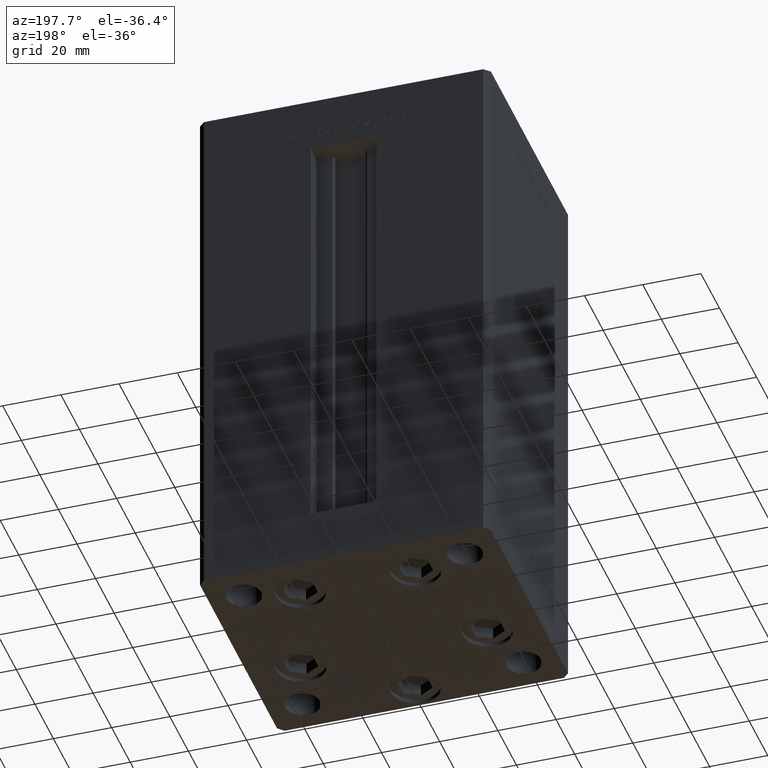
[diagram: clean part render]
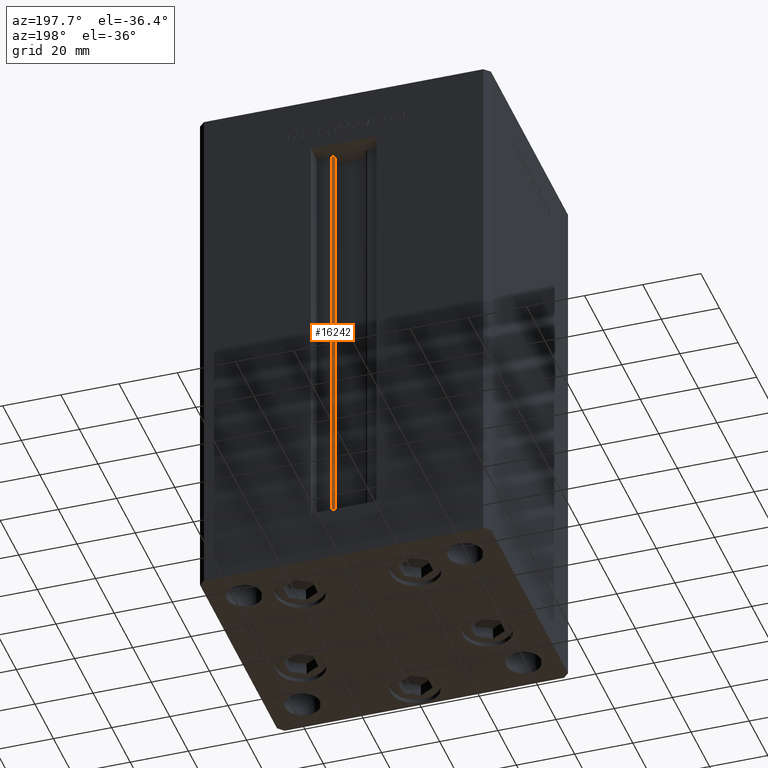
[diagram: same view with one face highlighted and labeled with its STEP entity id]
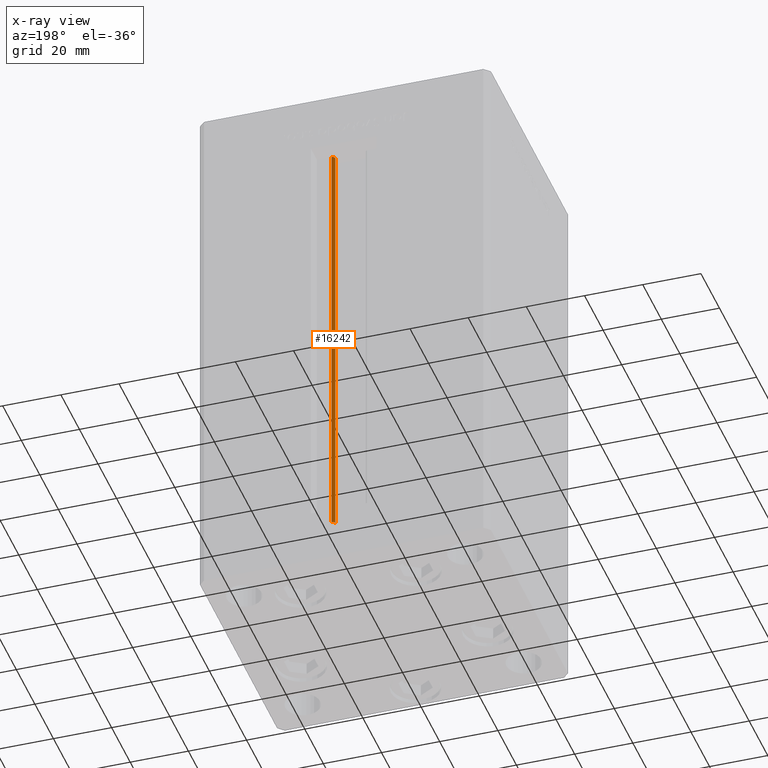
[diagram: x-ray of the same camera — body ghosted, the highlighted face saturated]
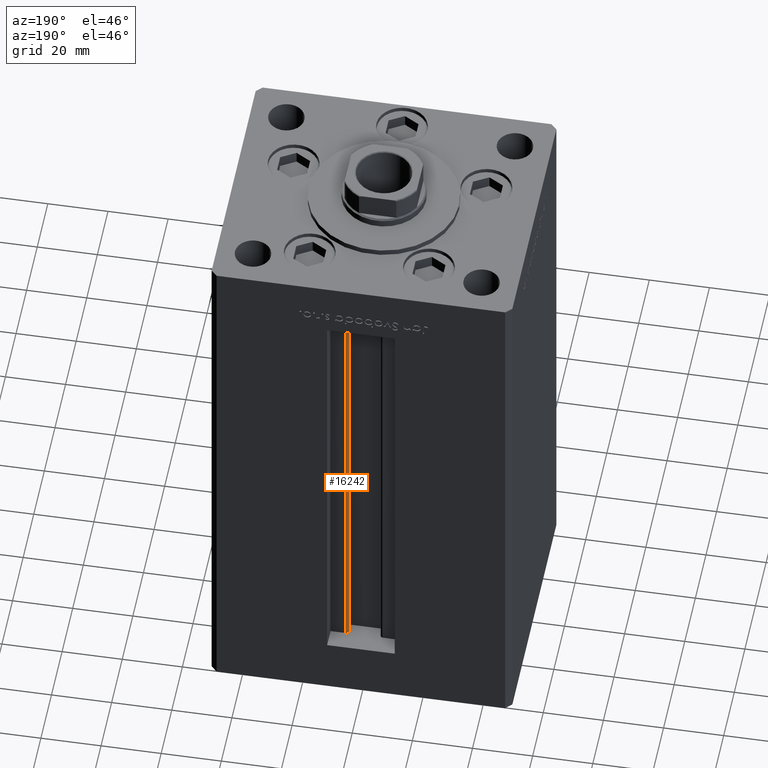
[diagram: same view with one face highlighted and labeled with its STEP entity id]
A machine part, auxiliary view. The second image highlights one B-rep face of the part: STEP entity #16242.
The next image is the same camera in x-ray: the body ghosted, the highlighted face saturated — about 0% of this face is hidden behind the body in this view.
A second angle (auxiliary view) of the same face is appended — the face is thin or edge-on in the first view.
In plain terms, the highlighted cylindrical surface (edge-blend (fillet) strip) has radius 0.9333 mm, axis along (0, 0, 1).
Its self-contained STEP definition (entity closure, byte-faithful):
#1302 = LINE ( 'NONE', #36669, #18632 ) ;
#1773 = DIRECTION ( 'NONE',  ( -0.000000000000000000, -0.000000000000000000, -1.000000000000000000 ) ) ;
#2035 = CARTESIAN_POINT ( 'NONE',  ( 6.183333333333997928, 36.06666666666598786, 0.000000000000000000 ) ) ;
#4296 = ORIENTED_EDGE ( 'NONE', *, *, #48352, .T. ) ;
#4536 = AXIS2_PLACEMENT_3D ( 'NONE', #2035, #1773, #30246 ) ;
#5525 = CYLINDRICAL_SURFACE ( 'NONE', #43312, 0.9333333333340008142 ) ;
#5716 = DIRECTION ( 'NONE',  ( -0.000000000000000000, -0.000000000000000000, 1.000000000000000000 ) ) ;
#6941 = ORIENTED_EDGE ( 'NONE', *, *, #27360, .F. ) ;
#7229 = CARTESIAN_POINT ( 'NONE',  ( 6.183333333333997928, 36.06666666666598786, 148.5000000000000000 ) ) ;
#7612 = VERTEX_POINT ( 'NONE', #18319 ) ;
#9470 = FACE_OUTER_BOUND ( 'NONE', #48100, .T. ) ;
#9665 = CARTESIAN_POINT ( 'NONE',  ( 6.183333333333997928, 36.99999999999999289, 0.000000000000000000 ) ) ;
#11506 = CIRCLE ( 'NONE', #16545, 0.9333333333340008142 ) ;
#13414 = DIRECTION ( 'NONE',  ( -0.000000000000000000, -0.000000000000000000, 1.000000000000000000 ) ) ;
#13614 = LINE ( 'NONE', #9665, #22865 ) ;
#16242 = ADVANCED_FACE ( 'NONE', ( #9470 ), #5525, .T. ) ;
#16545 = AXIS2_PLACEMENT_3D ( 'NONE', #7229, #47321, #51811 ) ;
#18052 = ORIENTED_EDGE ( 'NONE', *, *, #35110, .F. ) ;
#18319 = CARTESIAN_POINT ( 'NONE',  ( 5.375042956467942723, 35.59999999999898534, 148.5000000000000000 ) ) ;
#18632 = VECTOR ( 'NONE', #25037, 1000.000000000000000 ) ;
#21607 = CARTESIAN_POINT ( 'NONE',  ( 6.183333333333997928, 36.06666666666598786, 0.000000000000000000 ) ) ;
#22865 = VECTOR ( 'NONE', #5716, 1000.000000000000000 ) ;
#25037 = DIRECTION ( 'NONE',  ( -0.000000000000000000, -0.000000000000000000, 1.000000000000000000 ) ) ;
#25418 = ORIENTED_EDGE ( 'NONE', *, *, #27106, .T. ) ;
#27106 = EDGE_CURVE ( 'NONE', #39614, #7612, #1302, .T. ) ;
#27360 = EDGE_CURVE ( 'NONE', #30589, #28046, #13614, .T. ) ;
#28046 = VERTEX_POINT ( 'NONE', #38488 ) ;
#30246 = DIRECTION ( 'NONE',  ( 1.000000000000000000, 0.000000000000000000, 0.000000000000000000 ) ) ;
#30589 = VERTEX_POINT ( 'NONE', #40081 ) ;
#35110 = EDGE_CURVE ( 'NONE', #39614, #30589, #39055, .T. ) ;
#36669 = CARTESIAN_POINT ( 'NONE',  ( 5.375042956467945388, 35.59999999999898534, 0.000000000000000000 ) ) ;
#38488 = CARTESIAN_POINT ( 'NONE',  ( 6.183333333333997928, 36.99999999999999289, 148.5000000000000000 ) ) ;
#39055 = CIRCLE ( 'NONE', #4536, 0.9333333333340008142 ) ;
#39614 = VERTEX_POINT ( 'NONE', #40004 ) ;
#40004 = CARTESIAN_POINT ( 'NONE',  ( 5.375042956467945388, 35.59999999999898534, 0.000000000000000000 ) ) ;
#40081 = CARTESIAN_POINT ( 'NONE',  ( 6.183333333333997928, 36.99999999999999289, 0.000000000000000000 ) ) ;
#43312 = AXIS2_PLACEMENT_3D ( 'NONE', #21607, #13414, #45878 ) ;
#45878 = DIRECTION ( 'NONE',  ( 1.000000000000000000, 0.000000000000000000, 0.000000000000000000 ) ) ;
#47321 = DIRECTION ( 'NONE',  ( 0.000000000000000000, 0.000000000000000000, -1.000000000000000000 ) ) ;
#48100 = EDGE_LOOP ( 'NONE', ( #6941, #18052, #25418, #4296 ) ) ;
#48352 = EDGE_CURVE ( 'NONE', #7612, #28046, #11506, .T. ) ;
#51811 = DIRECTION ( 'NONE',  ( 1.000000000000000000, 0.000000000000000000, 0.000000000000000000 ) ) ;